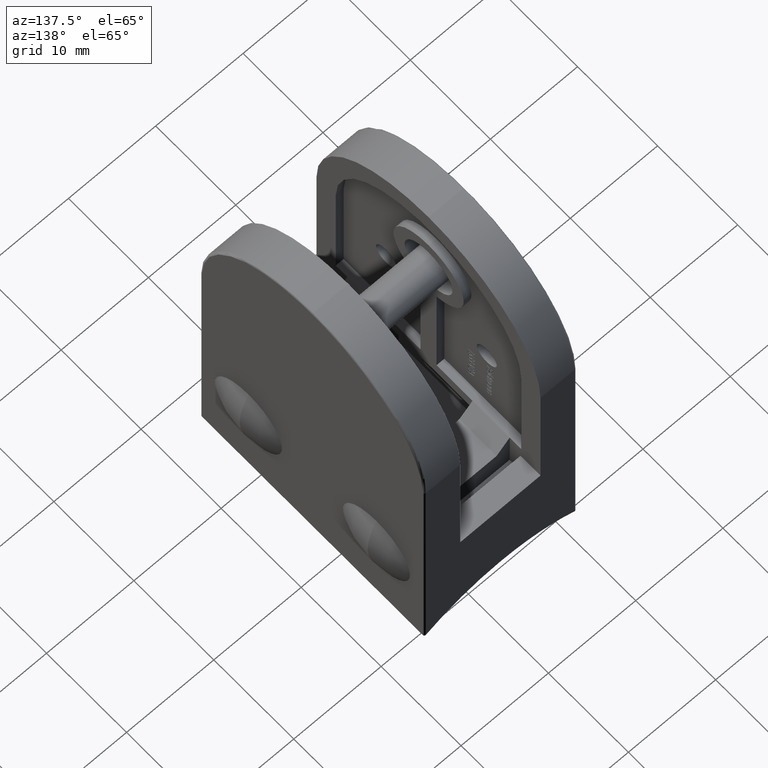
[diagram: clean part render]
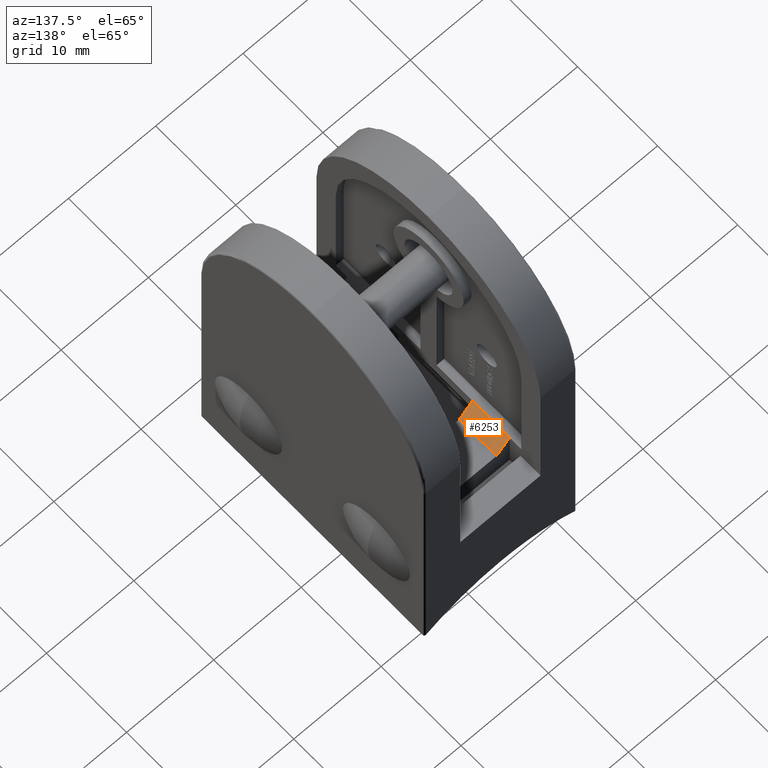
[diagram: same view with one face highlighted and labeled with its STEP entity id]
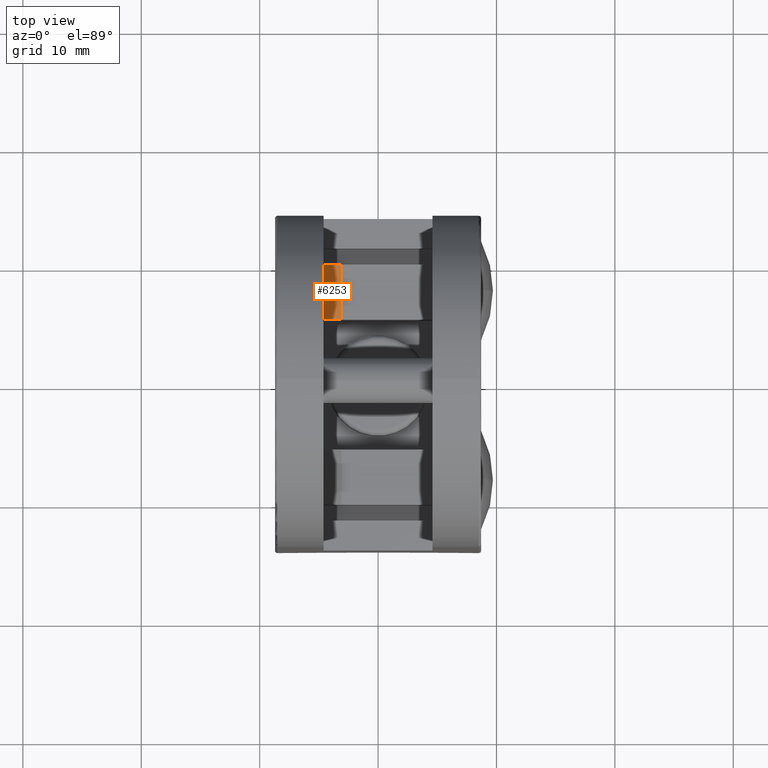
[diagram: same view with one face highlighted and labeled with its STEP entity id]
A machine part, auxiliary view. The second image highlights one B-rep face of the part: STEP entity #6253.
A second angle (top view) of the same face is appended — the face is thin or edge-on in the first view.
In plain terms, the highlighted planar face has unit normal (0.7071, 0, 0.7071).
Its self-contained STEP definition (entity closure, byte-faithful):
#407 = LINE ( 'NONE', #39843, #25846 ) ;
#1897 = CARTESIAN_POINT ( 'NONE',  ( 4.099999999999997900, 11.59999999999999400, 12.00000000000000200 ) ) ;
#1907 = FACE_OUTER_BOUND ( 'NONE', #29308, .T. ) ;
#2431 = DIRECTION ( 'NONE',  ( 0.0000000000000000000, 1.000000000000000000, 0.0000000000000000000 ) ) ;
#3030 = LINE ( 'NONE', #36372, #27839 ) ;
#6253 = ADVANCED_FACE ( 'NONE', ( #1907 ), #11491, .T. ) ;
#6482 = VERTEX_POINT ( 'NONE', #11700 ) ;
#6821 = CARTESIAN_POINT ( 'NONE',  ( 5.599999999999998800, 3.378679656440356700, 10.50000000000000000 ) ) ;
#9607 = AXIS2_PLACEMENT_3D ( 'NONE', #1897, #45139, #52994 ) ;
#11491 = PLANE ( 'NONE',  #9607 ) ;
#11700 = CARTESIAN_POINT ( 'NONE',  ( 5.599999999999998800, 10.14999999999999900, 10.50000000000000000 ) ) ;
#15736 = EDGE_CURVE ( 'NONE', #45143, #6482, #57940, .T. ) ;
#18063 = CARTESIAN_POINT ( 'NONE',  ( 5.599999999999998800, 5.499999999999999100, 10.50000000000000000 ) ) ;
#24009 = VECTOR ( 'NONE', #2431, 1000.000000000000000 ) ;
#24315 = VERTEX_POINT ( 'NONE', #45472 ) ;
#25846 = VECTOR ( 'NONE', #58676, 1000.000000000000000 ) ;
#27579 = DIRECTION ( 'NONE',  ( 0.7071067811865459100, 0.0000000000000000000, -0.7071067811865491300 ) ) ;
#27839 = VECTOR ( 'NONE', #41799, 1000.000000000000000 ) ;
#28634 = EDGE_CURVE ( 'NONE', #45143, #29241, #407, .T. ) ;
#29241 = VERTEX_POINT ( 'NONE', #59830 ) ;
#29308 = EDGE_LOOP ( 'NONE', ( #59013, #58720, #46503, #43122 ) ) ;
#31123 = LINE ( 'NONE', #46697, #42375 ) ;
#34546 = EDGE_CURVE ( 'NONE', #29241, #24315, #3030, .T. ) ;
#36372 = CARTESIAN_POINT ( 'NONE',  ( 4.099999999999997900, 10.14999999999999900, 12.00000000000000200 ) ) ;
#39843 = CARTESIAN_POINT ( 'NONE',  ( 4.099999999999997900, 5.499999999999999100, 12.00000000000000200 ) ) ;
#41799 = DIRECTION ( 'NONE',  ( 0.0000000000000000000, 1.000000000000000000, 0.0000000000000000000 ) ) ;
#42375 = VECTOR ( 'NONE', #27579, 1000.000000000000000 ) ;
#43122 = ORIENTED_EDGE ( 'NONE', *, *, #34546, .F. ) ;
#45139 = DIRECTION ( 'NONE',  ( 0.7071067811865491300, 0.0000000000000000000, 0.7071067811865459100 ) ) ;
#45143 = VERTEX_POINT ( 'NONE', #18063 ) ;
#45472 = CARTESIAN_POINT ( 'NONE',  ( 4.099999999999999600, 10.14999999999999900, 12.00000000000000000 ) ) ;
#46503 = ORIENTED_EDGE ( 'NONE', *, *, #49363, .F. ) ;
#46697 = CARTESIAN_POINT ( 'NONE',  ( 4.099999999999997900, 10.14999999999999900, 12.00000000000000200 ) ) ;
#49363 = EDGE_CURVE ( 'NONE', #24315, #6482, #31123, .T. ) ;
#52994 = DIRECTION ( 'NONE',  ( 0.0000000000000000000, -1.000000000000000000, 0.0000000000000000000 ) ) ;
#57940 = LINE ( 'NONE', #6821, #24009 ) ;
#58676 = DIRECTION ( 'NONE',  ( -0.7071067811865459100, -0.0000000000000000000, 0.7071067811865491300 ) ) ;
#58720 = ORIENTED_EDGE ( 'NONE', *, *, #15736, .T. ) ;
#59013 = ORIENTED_EDGE ( 'NONE', *, *, #28634, .F. ) ;
#59830 = CARTESIAN_POINT ( 'NONE',  ( 4.099999999999999600, 5.499999999999999100, 12.00000000000000000 ) ) ;